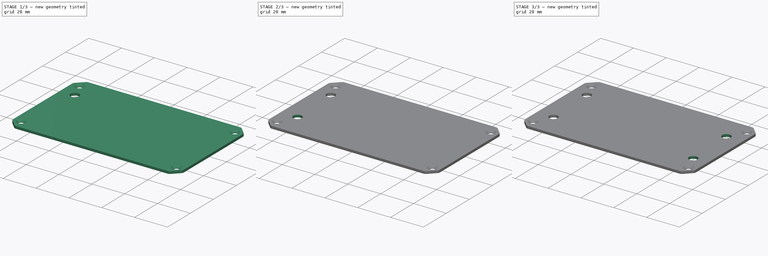
[diagram: build sequence overview — one tinted view per stage of 3, left to right]
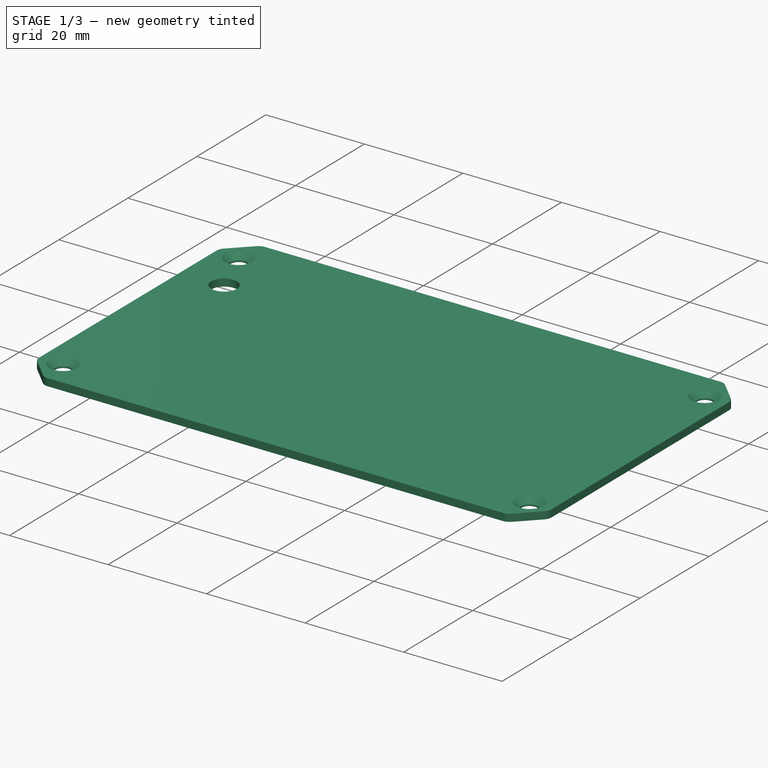
[diagram: stage 1 of 3 — iso view after this stage's code; geometry added in this stage tinted green]
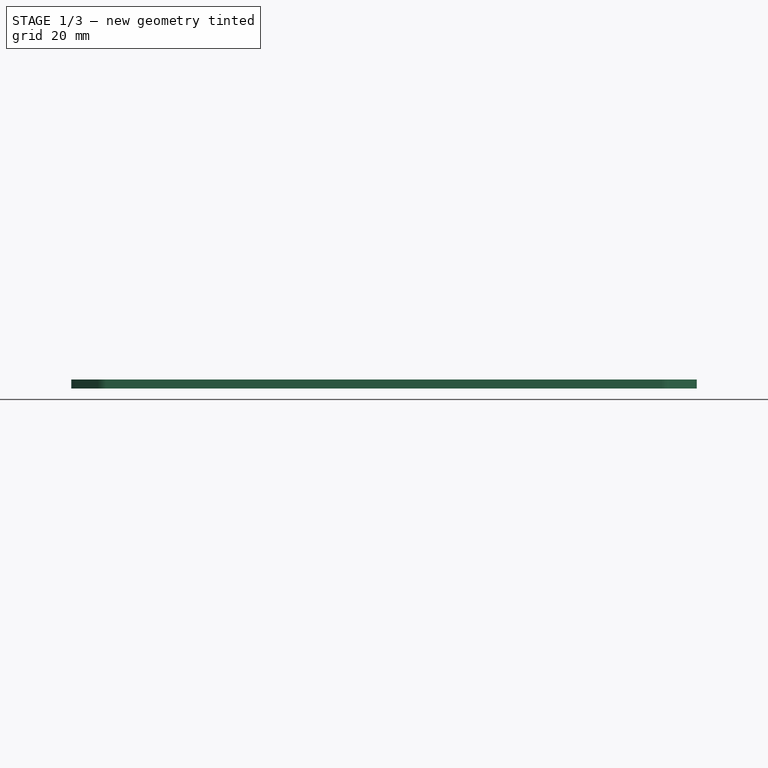
[diagram: stage 1 of 3 — front view after this stage's code; geometry added in this stage tinted green]
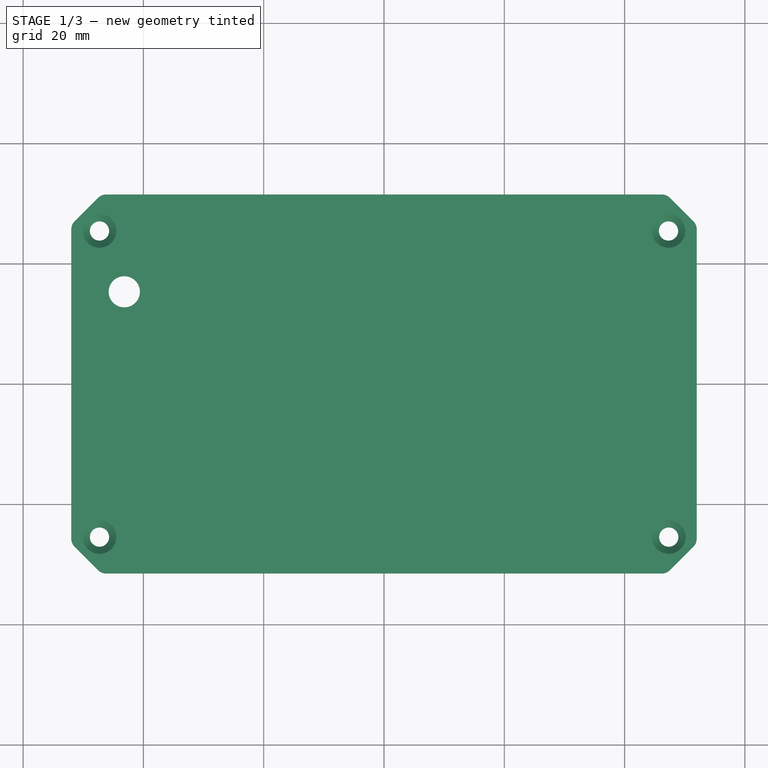
[diagram: stage 1 of 3 — top view after this stage's code; geometry added in this stage tinted green]
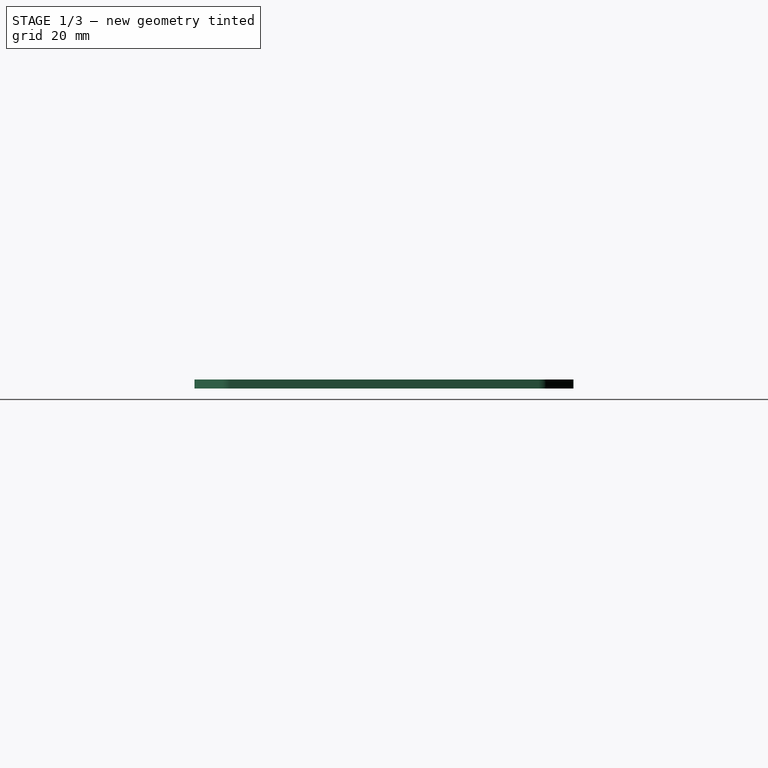
[diagram: stage 1 of 3 — right view after this stage's code; geometry added in this stage tinted green]
FCSTD DOCUMENT  (FreeCAD 1.0R39319 (Git))
Label: K96-10463-H7-L120_frontpanel_SJ3-35083D-TR_slot1_up_slot4_down
License: All rights reserved
LicenseURL: https://en.wikipedia.org/wiki/All_rights_reserved
objects: Sketcher::SketchObject×2, PartDesign::Pocket×2, PartDesign::LinearPattern×2, Part::Feature×1, PartDesign::FeatureBase×1, PartDesign::Body×1
note: 18 computed .brp shape members not serialized (recipe doc carries the construction recipe); baked Part::Feature solids carry a one-line shape summary decoded from their .brp

FEATURE [Part::Feature] Part__Feature002  label="K96-B"
  Placement = pos=(1.99328,-0.73014,180.75) rot=(0,0,1;0rad)
  shape: bbox 104 x 63 x 1.5 mm, 34 faces (baked)
FEATURE [PartDesign::FeatureBase] BaseFeature
  BaseFeature = -> Part__Feature002
  Suppressed = false
FEATURE [Sketcher::SketchObject] Sketch  label="level4"
  ArcFitTolerance = 1e-06
  AttachmentSupport = -> [BaseFeature]
  ExternalGeometry = -> [BaseFeature]
  FullyConstrained = true
  MakeInternals = false
  MapMode = 5
  Placement = pos=(0,0,0.75) rot=(0,0,1;0rad)
  sketch-geometry (1):
    g0: Circle CenterX=-43.18 CenterY=15.3379 CenterZ=0 NormalX=0 NormalY=0 NormalZ=1 AngleXU=0 Radius=2.6
  constraints (3):
    c: Diameter(g0) = 5.2  'width_hole_level4'
    c: Distance(g0,g-3) = 8.82  'x-level4'
    c: Distance(g0,g-4) = 46.84  'y-level4'
FEATURE [Sketcher::SketchObject] Sketch001  label="level1"
  ArcFitTolerance = 1e-06
  AttachmentSupport = -> [BaseFeature]
  ExternalGeometry = -> [BaseFeature]
  FullyConstrained = true
  MakeInternals = false
  MapMode = 5
  Placement = pos=(0,0,0.75) rot=(0,0,1;0rad)
  sketch-geometry (1):
    g0: Circle CenterX=-41.91 CenterY=-15.3421 CenterZ=0 NormalX=0 NormalY=0 NormalZ=1 AngleXU=0 Radius=2.6
  constraints (3):
    c: Diameter(g0) = 5.2  'width_hole_level1'
    c: Distance(g0,g-3) = 10.09  'x-level1'
    c: Distance(g0,g-4) = 16.16  'y-level1'
FEATURE [PartDesign::Pocket] Pocket  label="hole_level4"
  BaseFeature = -> BaseFeature
  Direction = (0,0,-1)
  Length = 5
  Length2 = 5
  Profile = -> Sketch
  ReferenceAxis = -> Sketch [N_Axis]
  Refine = true
  Suppressed = false
  Type = 1
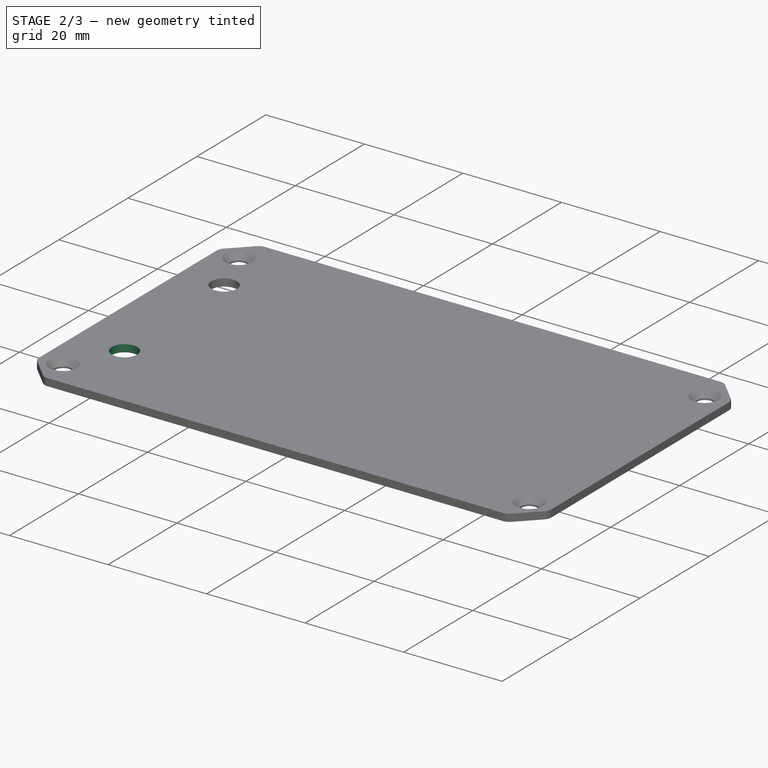
[diagram: stage 2 of 3 — iso view after this stage's code; geometry added in this stage tinted green]
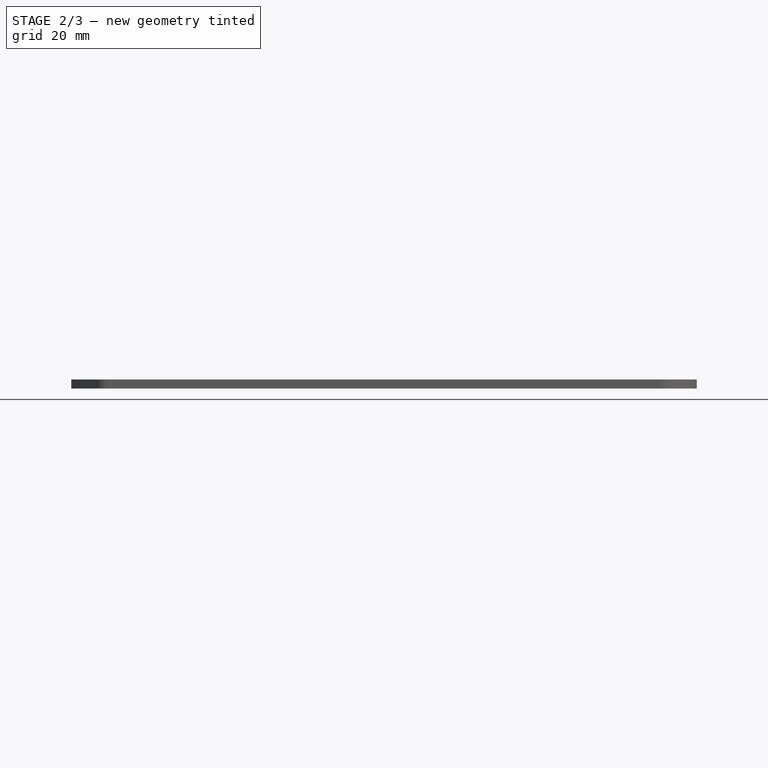
[diagram: stage 2 of 3 — front view after this stage's code; geometry added in this stage tinted green]
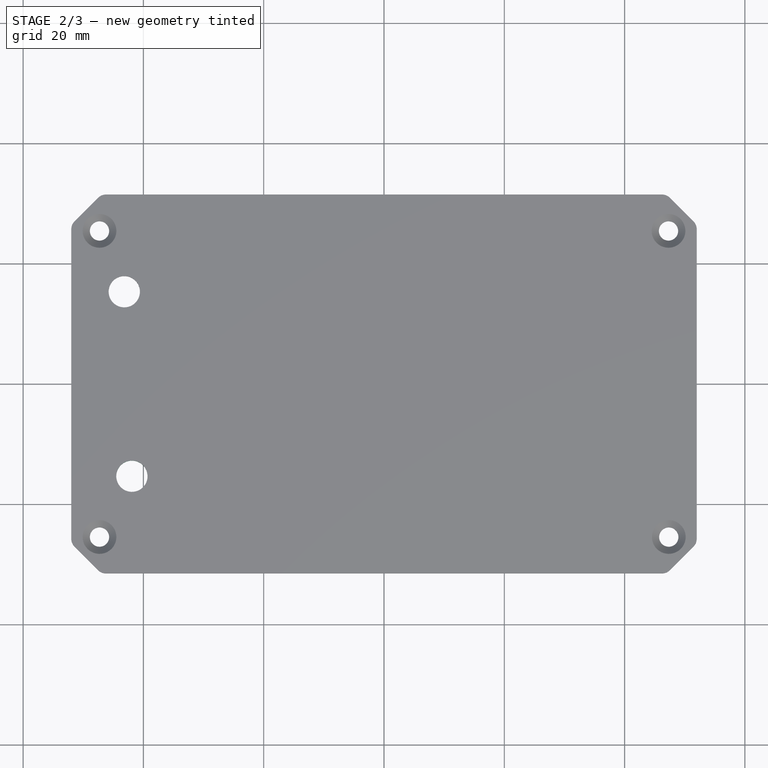
[diagram: stage 2 of 3 — top view after this stage's code; geometry added in this stage tinted green]
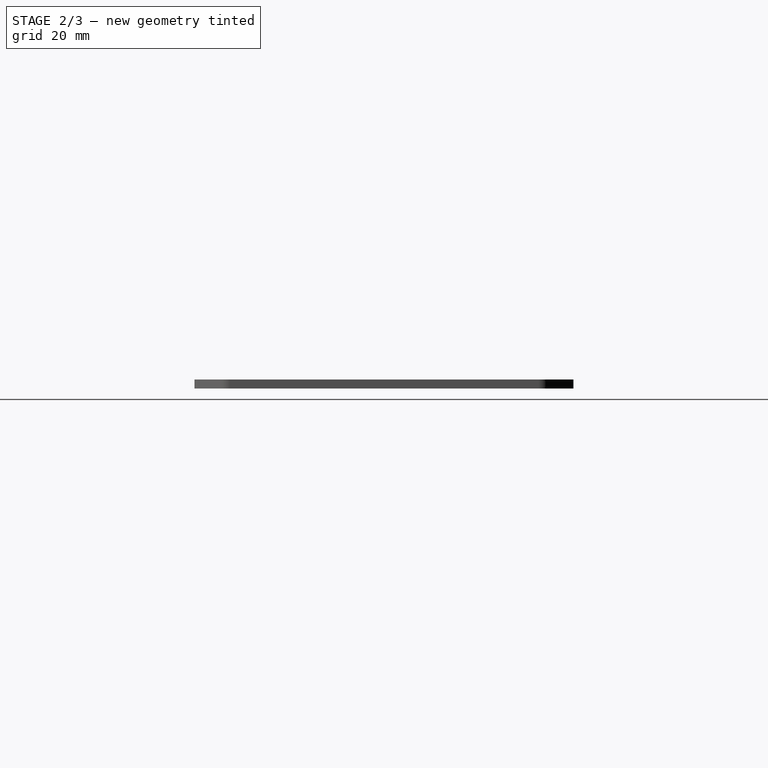
[diagram: stage 2 of 3 — right view after this stage's code; geometry added in this stage tinted green]
FEATURE [PartDesign::Pocket] Pocket001  label="hole_level1"
  BaseFeature = -> Pocket
  Direction = (0,0,-1)
  Length = 5
  Length2 = 5
  Profile = -> Sketch001
  ReferenceAxis = -> Sketch001 [N_Axis]
  Refine = true
  Suppressed = false
  Type = 1
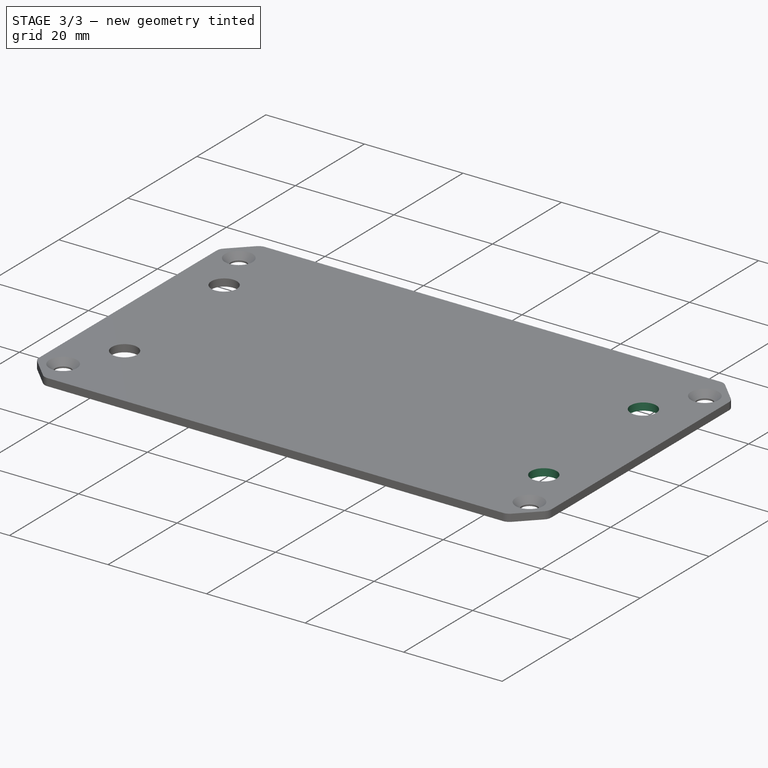
[diagram: stage 3 of 3 — iso view after this stage's code; geometry added in this stage tinted green]
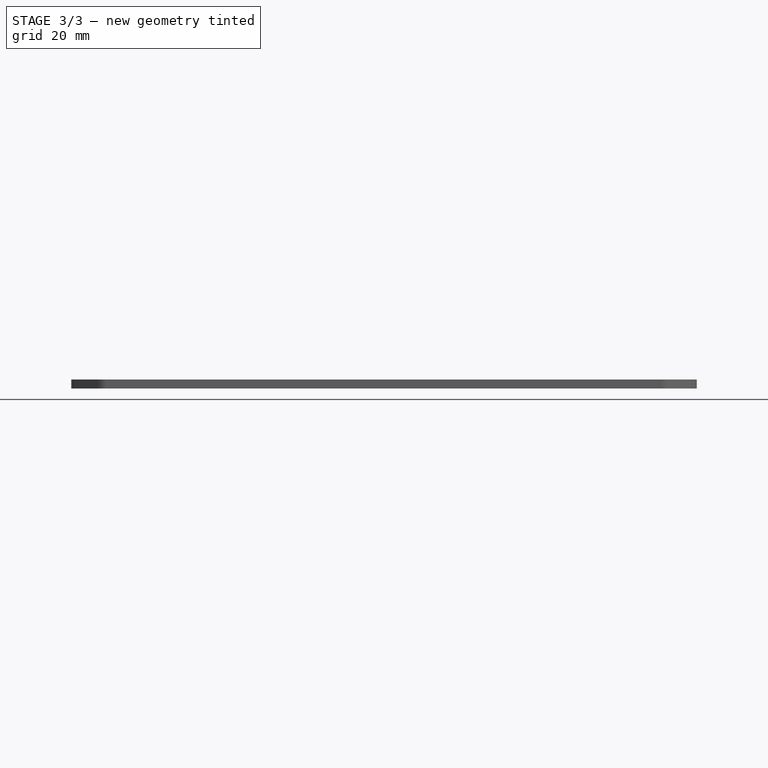
[diagram: stage 3 of 3 — front view after this stage's code; geometry added in this stage tinted green]
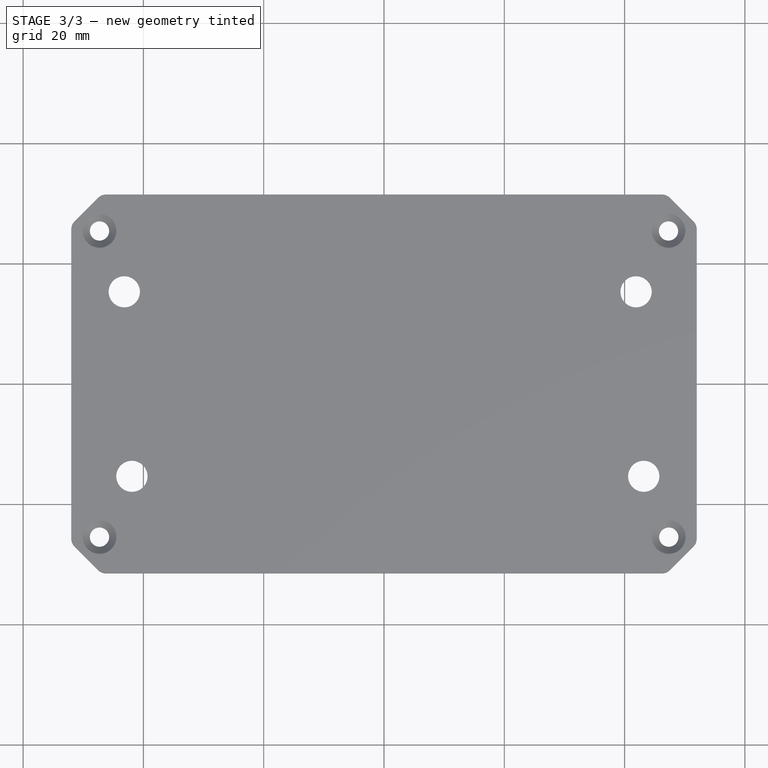
[diagram: stage 3 of 3 — top view after this stage's code; geometry added in this stage tinted green]
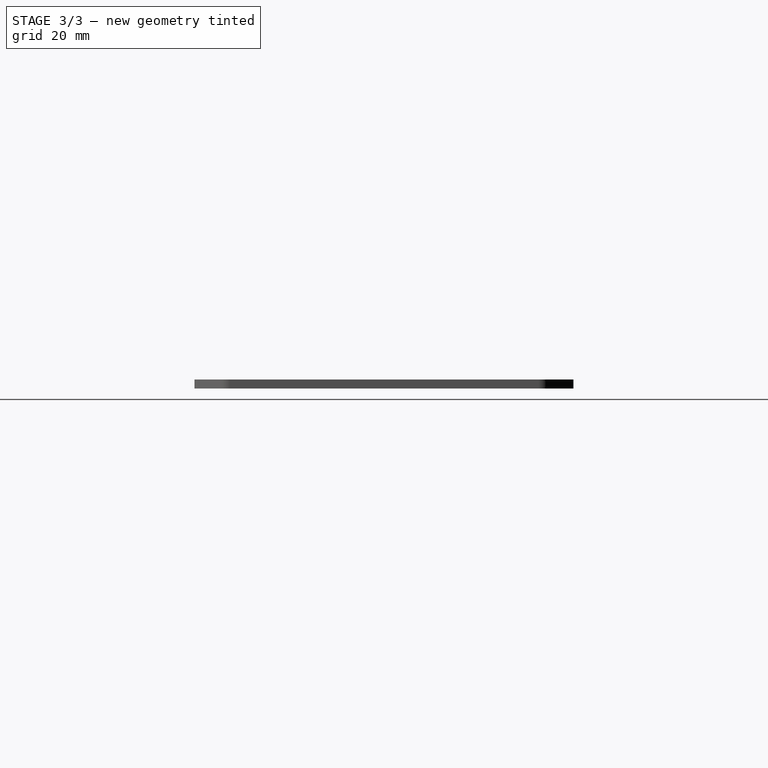
[diagram: stage 3 of 3 — right view after this stage's code; geometry added in this stage tinted green]
FEATURE [PartDesign::LinearPattern] LinearPattern  label="hole2_level4"
  BaseFeature = -> Pocket001
  Direction = -> Sketch [H_Axis]
  Length = 85.09
  Mode = 0
  Occurrences = 2
  Offset = 85.09
  Originals = -> [Pocket]
  Refine = true
  Suppressed = false
  TransformMode = 0
FEATURE [PartDesign::LinearPattern] LinearPattern001  label="hole2_level1"
  BaseFeature = -> LinearPattern
  Direction = -> Sketch001 [H_Axis]
  Length = 85.09
  Mode = 0
  Occurrences = 2
  Offset = 85.09
  Originals = -> [Pocket001]
  Refine = true
  Suppressed = false
  TransformMode = 0
FEATURE [PartDesign::Body] Body  label="K96-10463-H7-L120_frontpanel_SJ3-35083D-TR_slot1_up_slot4_down"
  AllowCompound = false
  BaseFeature = -> Part__Feature002
  Group = -> [BaseFeature,Sketch,Sketch001,Pocket,Pocket001,LinearPattern,LinearPattern001]
  Origin = -> Origin
  Placement = pos=(0,0,0) rot=(1,0,0;1.5708rad)
  Tip = -> LinearPattern001
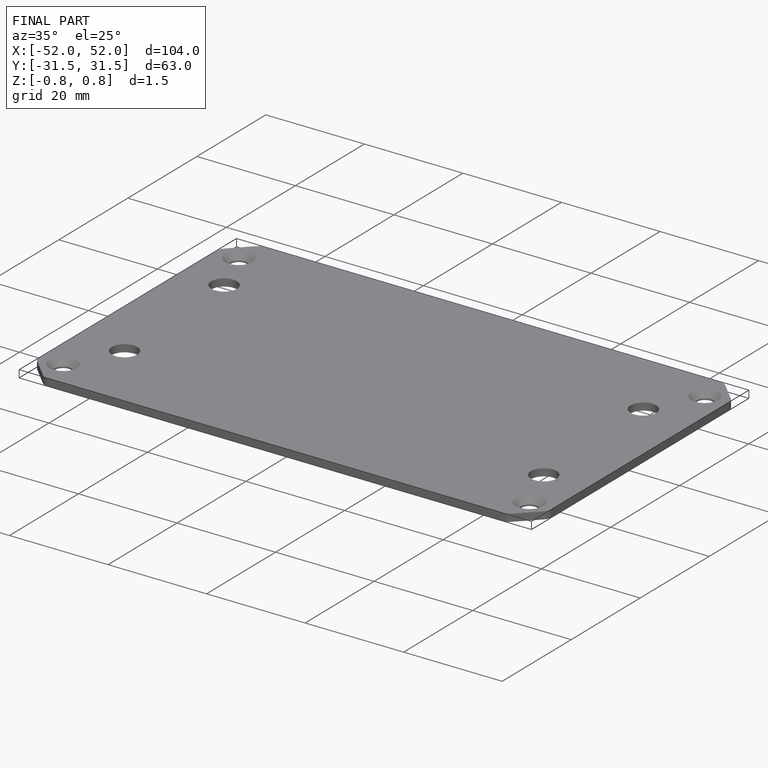
[diagram: finished part — iso view with bounding-box wireframe]
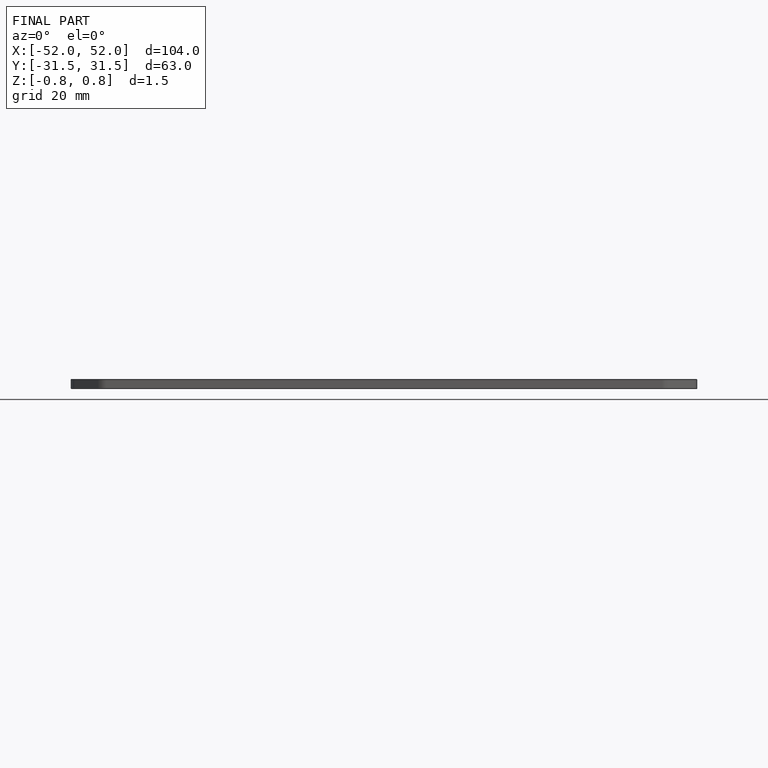
[diagram: finished part — front view with bounding-box wireframe]
